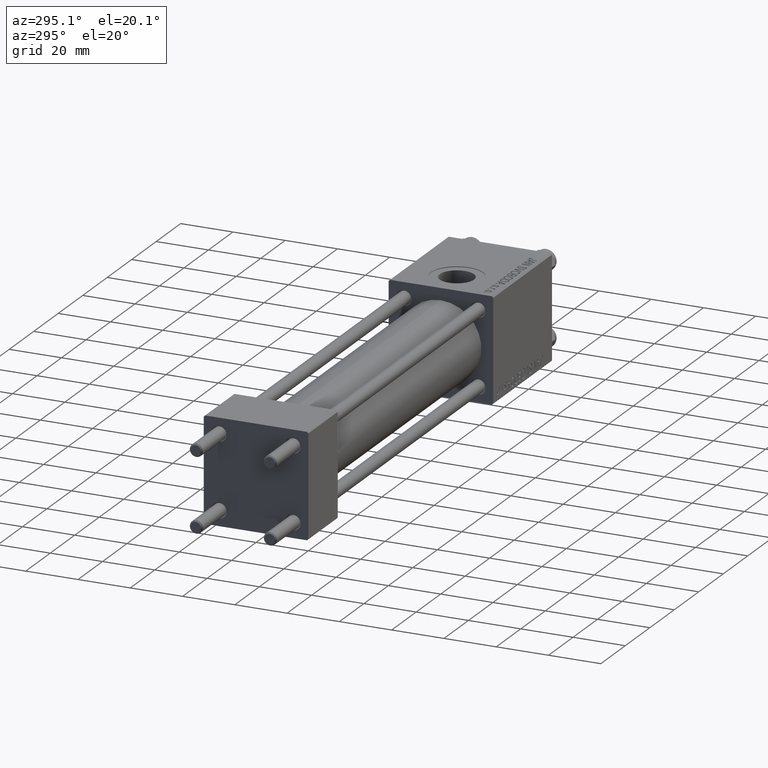
[diagram: clean part render]
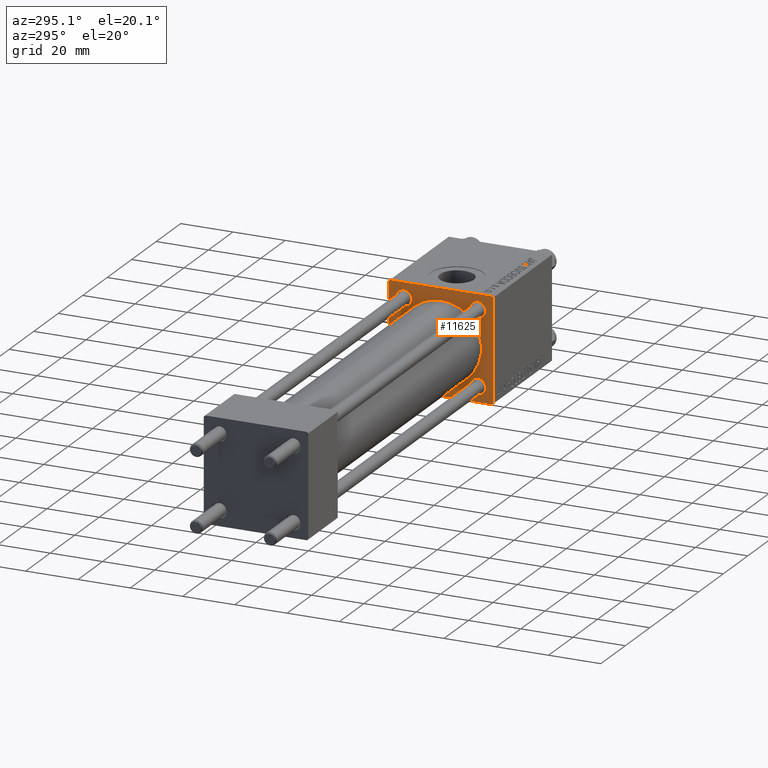
[diagram: same view with one face highlighted and labeled with its STEP entity id]
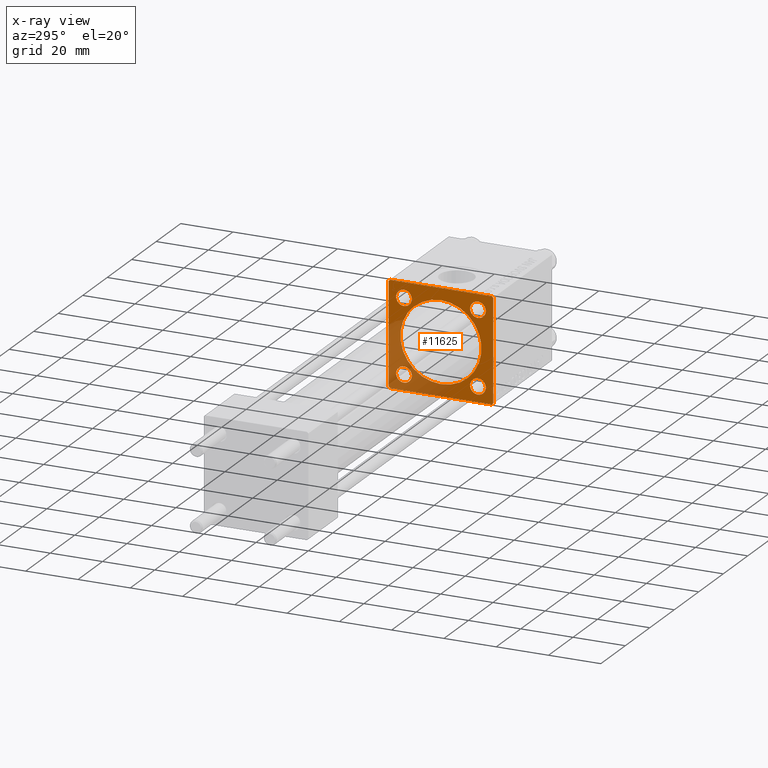
[diagram: x-ray of the same camera — body ghosted, the highlighted face saturated]
A machine part, auxiliary view. The second image highlights one B-rep face of the part: STEP entity #11625.
The next image is the same camera in x-ray: the body ghosted, the highlighted face saturated — about 30% of this face is hidden behind the body in this view.
In plain terms, the highlighted planar face has unit normal (-1, 0, 0).
Its self-contained STEP definition (entity closure, byte-faithful):
#607 = EDGE_LOOP ( 'NONE', ( #49675, #18979 ) ) ;
#623 = CARTESIAN_POINT ( 'NONE',  ( 151.0000000000000000, 14.15000000000000036, -17.14999999999997726 ) ) ;
#781 = EDGE_CURVE ( 'NONE', #42589, #5243, #16953, .T. ) ;
#1234 = LINE ( 'NONE', #16750, #15856 ) ;
#1569 = EDGE_CURVE ( 'NONE', #26627, #31905, #3195, .T. ) ;
#1601 = LINE ( 'NONE', #28076, #32705 ) ;
#1691 = CARTESIAN_POINT ( 'NONE',  ( 151.0000000000000000, -20.00000000000000000, -19.49999999999999645 ) ) ;
#2320 = CARTESIAN_POINT ( 'NONE',  ( 151.0000000000000000, 19.99999999999999645, 20.00000000000000000 ) ) ;
#2778 = CIRCLE ( 'NONE', #28775, 2.999999999999973355 ) ;
#2884 = EDGE_CURVE ( 'NONE', #11523, #6914, #20166, .T. ) ;
#2977 = DIRECTION ( 'NONE',  ( 0.000000000000000000, 0.000000000000000000, -1.000000000000000000 ) ) ;
#3123 = DIRECTION ( 'NONE',  ( 1.000000000000000000, 0.000000000000000000, 0.000000000000000000 ) ) ;
#3195 = LINE ( 'NONE', #18715, #8950 ) ;
#3377 = CARTESIAN_POINT ( 'NONE',  ( 151.0000000000000000, -14.15000000000000036, 14.15000000000000036 ) ) ;
#3881 = DIRECTION ( 'NONE',  ( 0.000000000000000000, 0.000000000000000000, -1.000000000000000000 ) ) ;
#3986 = EDGE_CURVE ( 'NONE', #23971, #37419, #45718, .T. ) ;
#4260 = VERTEX_POINT ( 'NONE', #11413 ) ;
#4492 = AXIS2_PLACEMENT_3D ( 'NONE', #47940, #5382, #36186 ) ;
#4637 = DIRECTION ( 'NONE',  ( 1.000000000000000000, 0.000000000000000000, 0.000000000000000000 ) ) ;
#4672 = LINE ( 'NONE', #8730, #48659 ) ;
#4904 = CARTESIAN_POINT ( 'NONE',  ( 151.0000000000000000, 19.75000000000001066, 19.75000000000001066 ) ) ;
#4906 = EDGE_CURVE ( 'NONE', #5243, #42589, #48211, .T. ) ;
#5225 = EDGE_CURVE ( 'NONE', #32255, #26627, #1601, .T. ) ;
#5231 = VERTEX_POINT ( 'NONE', #13283 ) ;
#5243 = VERTEX_POINT ( 'NONE', #41812 ) ;
#5382 = DIRECTION ( 'NONE',  ( -1.000000000000000000, 0.000000000000000000, -0.000000000000000000 ) ) ;
#6914 = VERTEX_POINT ( 'NONE', #48796 ) ;
#7300 = DIRECTION ( 'NONE',  ( 1.000000000000000000, 0.000000000000000000, 0.000000000000000000 ) ) ;
#7403 = VERTEX_POINT ( 'NONE', #42087 ) ;
#8060 = EDGE_CURVE ( 'NONE', #37419, #23971, #2778, .T. ) ;
#8254 = CARTESIAN_POINT ( 'NONE',  ( 151.0000000000000000, 19.99999999999999645, -19.50000000000000000 ) ) ;
#8444 = CARTESIAN_POINT ( 'NONE',  ( 151.0000000000000000, 0.000000000000000000, 0.000000000000000000 ) ) ;
#8730 = CARTESIAN_POINT ( 'NONE',  ( 151.0000000000000000, 19.99999999999999645, 20.00000000000000000 ) ) ;
#8765 = ORIENTED_EDGE ( 'NONE', *, *, #40793, .T. ) ;
#8792 = CARTESIAN_POINT ( 'NONE',  ( 151.0000000000000000, 14.15000000000000036, -14.15000000000000036 ) ) ;
#8818 = DIRECTION ( 'NONE',  ( 0.000000000000000000, 0.000000000000000000, 1.000000000000000000 ) ) ;
#8950 = VECTOR ( 'NONE', #49812, 1000.000000000000114 ) ;
#9452 = DIRECTION ( 'NONE',  ( 0.000000000000000000, 0.000000000000000000, 1.000000000000000000 ) ) ;
#10465 = CARTESIAN_POINT ( 'NONE',  ( 151.0000000000000000, -14.15000000000000036, 17.14999999999997726 ) ) ;
#11413 = CARTESIAN_POINT ( 'NONE',  ( 151.0000000000000000, 0.000000000000000000, 15.50000000000000000 ) ) ;
#11449 = EDGE_CURVE ( 'NONE', #20107, #7403, #28851, .T. ) ;
#11456 = ORIENTED_EDGE ( 'NONE', *, *, #4906, .T. ) ;
#11523 = VERTEX_POINT ( 'NONE', #49228 ) ;
#11625 = ADVANCED_FACE ( 'NONE', ( #24231, #23726, #35689, #47432, #48185, #47191 ), #17077, .T. ) ;
#12371 = CARTESIAN_POINT ( 'NONE',  ( 151.0000000000000000, 14.15000000000000036, 14.15000000000000036 ) ) ;
#12424 = CARTESIAN_POINT ( 'NONE',  ( 151.0000000000000000, 14.15000000000000036, -11.15000000000002522 ) ) ;
#12455 = CARTESIAN_POINT ( 'NONE',  ( 151.0000000000000000, -14.15000000000000036, -11.15000000000002522 ) ) ;
#12799 = ORIENTED_EDGE ( 'NONE', *, *, #8060, .T. ) ;
#13283 = CARTESIAN_POINT ( 'NONE',  ( 151.0000000000000000, -19.50000000000003197, 19.99999999999999645 ) ) ;
#13762 = CARTESIAN_POINT ( 'NONE',  ( 151.0000000000000000, 14.15000000000000036, -14.15000000000000036 ) ) ;
#15557 = VECTOR ( 'NONE', #28051, 1000.000000000000114 ) ;
#15856 = VECTOR ( 'NONE', #24902, 1000.000000000000114 ) ;
#16486 = ORIENTED_EDGE ( 'NONE', *, *, #38441, .T. ) ;
#16750 = CARTESIAN_POINT ( 'NONE',  ( 151.0000000000000000, 19.74999999999999645, -19.74999999999999645 ) ) ;
#16953 = CIRCLE ( 'NONE', #25103, 2.999999999999976463 ) ;
#17077 = PLANE ( 'NONE',  #4492 ) ;
#17113 = DIRECTION ( 'NONE',  ( 0.000000000000000000, -1.000000000000000000, 0.000000000000000000 ) ) ;
#17230 = AXIS2_PLACEMENT_3D ( 'NONE', #39241, #23439, #23180 ) ;
#18293 = EDGE_LOOP ( 'NONE', ( #8765, #19159 ) ) ;
#18582 = CARTESIAN_POINT ( 'NONE',  ( 151.0000000000000000, 1.898202538678397557E-15, -15.50000000000000000 ) ) ;
#18715 = CARTESIAN_POINT ( 'NONE',  ( 151.0000000000000000, -19.74999999999999645, -19.74999999999999645 ) ) ;
#18979 = ORIENTED_EDGE ( 'NONE', *, *, #21547, .T. ) ;
#19159 = ORIENTED_EDGE ( 'NONE', *, *, #37506, .T. ) ;
#19463 = ORIENTED_EDGE ( 'NONE', *, *, #5225, .T. ) ;
#19555 = ORIENTED_EDGE ( 'NONE', *, *, #11449, .T. ) ;
#20107 = VERTEX_POINT ( 'NONE', #26590 ) ;
#20166 = LINE ( 'NONE', #4904, #15557 ) ;
#21547 = EDGE_CURVE ( 'NONE', #27725, #49541, #43766, .T. ) ;
#21958 = DIRECTION ( 'NONE',  ( 0.000000000000000000, 0.000000000000000000, 1.000000000000000000 ) ) ;
#22823 = DIRECTION ( 'NONE',  ( 0.000000000000000000, 0.000000000000000000, 1.000000000000000000 ) ) ;
#23180 = DIRECTION ( 'NONE',  ( 0.000000000000000000, 0.000000000000000000, 1.000000000000000000 ) ) ;
#23258 = EDGE_CURVE ( 'NONE', #49541, #27725, #43794, .T. ) ;
#23439 = DIRECTION ( 'NONE',  ( 1.000000000000000000, 0.000000000000000000, 0.000000000000000000 ) ) ;
#23726 = FACE_BOUND ( 'NONE', #44873, .T. ) ;
#23971 = VERTEX_POINT ( 'NONE', #38099 ) ;
#24231 = FACE_BOUND ( 'NONE', #39806, .T. ) ;
#24727 = DIRECTION ( 'NONE',  ( 0.000000000000000000, 0.000000000000000000, 1.000000000000000000 ) ) ;
#24902 = DIRECTION ( 'NONE',  ( -0.000000000000000000, -0.7071067811865474617, -0.7071067811865474617 ) ) ;
#25103 = AXIS2_PLACEMENT_3D ( 'NONE', #47245, #43412, #36242 ) ;
#25320 = DIRECTION ( 'NONE',  ( 1.000000000000000000, 0.000000000000000000, 0.000000000000000000 ) ) ;
#25687 = DIRECTION ( 'NONE',  ( -0.000000000000000000, 0.7071067811865474617, 0.7071067811865474617 ) ) ;
#25913 = EDGE_CURVE ( 'NONE', #11523, #5231, #4672, .T. ) ;
#26590 = CARTESIAN_POINT ( 'NONE',  ( 151.0000000000000000, 14.15000000000000036, 17.14999999999997726 ) ) ;
#26627 = VERTEX_POINT ( 'NONE', #31735 ) ;
#27027 = VECTOR ( 'NONE', #49951, 1000.000000000000000 ) ;
#27345 = ORIENTED_EDGE ( 'NONE', *, *, #31674, .T. ) ;
#27725 = VERTEX_POINT ( 'NONE', #623 ) ;
#28051 = DIRECTION ( 'NONE',  ( 0.000000000000000000, 0.7071067811865474617, -0.7071067811865474617 ) ) ;
#28076 = CARTESIAN_POINT ( 'NONE',  ( 151.0000000000000000, 19.99999999999999645, -20.00000000000000000 ) ) ;
#28314 = LINE ( 'NONE', #40043, #34153 ) ;
#28775 = AXIS2_PLACEMENT_3D ( 'NONE', #3377, #3123, #21958 ) ;
#28851 = CIRCLE ( 'NONE', #37001, 2.999999999999973355 ) ;
#29024 = DIRECTION ( 'NONE',  ( 0.000000000000000000, 8.673617379884036705E-17, -1.000000000000000000 ) ) ;
#29138 = AXIS2_PLACEMENT_3D ( 'NONE', #8792, #25320, #43957 ) ;
#29842 = ORIENTED_EDGE ( 'NONE', *, *, #2884, .T. ) ;
#30583 = CIRCLE ( 'NONE', #41176, 15.50000000000000000 ) ;
#30961 = DIRECTION ( 'NONE',  ( 1.000000000000000000, 0.000000000000000000, 0.000000000000000000 ) ) ;
#31373 = CARTESIAN_POINT ( 'NONE',  ( 151.0000000000000000, 19.49999999999999645, -20.00000000000000000 ) ) ;
#31643 = VERTEX_POINT ( 'NONE', #43137 ) ;
#31674 = EDGE_CURVE ( 'NONE', #31643, #5231, #28314, .T. ) ;
#31735 = CARTESIAN_POINT ( 'NONE',  ( 151.0000000000000000, -19.49999999999999645, -20.00000000000000000 ) ) ;
#31905 = VERTEX_POINT ( 'NONE', #1691 ) ;
#31906 = AXIS2_PLACEMENT_3D ( 'NONE', #42206, #7300, #22823 ) ;
#32255 = VERTEX_POINT ( 'NONE', #31373 ) ;
#32545 = EDGE_CURVE ( 'NONE', #6914, #39901, #34379, .T. ) ;
#32705 = VECTOR ( 'NONE', #17113, 1000.000000000000000 ) ;
#32852 = CARTESIAN_POINT ( 'NONE',  ( 151.0000000000000000, 14.15000000000000036, 14.15000000000000036 ) ) ;
#33336 = LINE ( 'NONE', #36679, #49333 ) ;
#33462 = ORIENTED_EDGE ( 'NONE', *, *, #40307, .T. ) ;
#34153 = VECTOR ( 'NONE', #25687, 1000.000000000000114 ) ;
#34379 = LINE ( 'NONE', #2320, #27027 ) ;
#34972 = DIRECTION ( 'NONE',  ( 0.000000000000000000, -1.000000000000000000, -8.673617379884035472E-17 ) ) ;
#35063 = ORIENTED_EDGE ( 'NONE', *, *, #25913, .F. ) ;
#35621 = AXIS2_PLACEMENT_3D ( 'NONE', #13762, #44369, #9452 ) ;
#35689 = FACE_BOUND ( 'NONE', #607, .T. ) ;
#35806 = ORIENTED_EDGE ( 'NONE', *, *, #45637, .F. ) ;
#36186 = DIRECTION ( 'NONE',  ( -0.000000000000000000, 0.000000000000000000, 1.000000000000000000 ) ) ;
#36225 = AXIS2_PLACEMENT_3D ( 'NONE', #32852, #44609, #24727 ) ;
#36242 = DIRECTION ( 'NONE',  ( 0.000000000000000000, 0.000000000000000000, 1.000000000000000000 ) ) ;
#36679 = CARTESIAN_POINT ( 'NONE',  ( 151.0000000000000000, -20.00000000000000355, 19.99999999999999645 ) ) ;
#36706 = EDGE_LOOP ( 'NONE', ( #19463, #43983, #35806, #27345, #35063, #29842, #38127, #16486 ) ) ;
#36977 = AXIS2_PLACEMENT_3D ( 'NONE', #46530, #30961, #2977 ) ;
#37001 = AXIS2_PLACEMENT_3D ( 'NONE', #12371, #43733, #8818 ) ;
#37419 = VERTEX_POINT ( 'NONE', #10465 ) ;
#37506 = EDGE_CURVE ( 'NONE', #46882, #4260, #50001, .T. ) ;
#38099 = CARTESIAN_POINT ( 'NONE',  ( 151.0000000000000000, -14.15000000000000036, 11.15000000000002700 ) ) ;
#38127 = ORIENTED_EDGE ( 'NONE', *, *, #32545, .T. ) ;
#38441 = EDGE_CURVE ( 'NONE', #39901, #32255, #1234, .T. ) ;
#39241 = CARTESIAN_POINT ( 'NONE',  ( 151.0000000000000000, -14.15000000000000036, 14.15000000000000036 ) ) ;
#39806 = EDGE_LOOP ( 'NONE', ( #12799, #48454 ) ) ;
#39901 = VERTEX_POINT ( 'NONE', #8254 ) ;
#40043 = CARTESIAN_POINT ( 'NONE',  ( 151.0000000000000000, -19.75000000000001421, 19.75000000000001421 ) ) ;
#40307 = EDGE_CURVE ( 'NONE', #7403, #20107, #48466, .T. ) ;
#40793 = EDGE_CURVE ( 'NONE', #4260, #46882, #30583, .T. ) ;
#41176 = AXIS2_PLACEMENT_3D ( 'NONE', #8444, #4637, #3881 ) ;
#41812 = CARTESIAN_POINT ( 'NONE',  ( 151.0000000000000000, -14.15000000000000036, -17.14999999999997726 ) ) ;
#42087 = CARTESIAN_POINT ( 'NONE',  ( 151.0000000000000000, 14.15000000000000036, 11.15000000000002700 ) ) ;
#42206 = CARTESIAN_POINT ( 'NONE',  ( 151.0000000000000000, -14.15000000000000036, -14.15000000000000036 ) ) ;
#42589 = VERTEX_POINT ( 'NONE', #12455 ) ;
#43137 = CARTESIAN_POINT ( 'NONE',  ( 151.0000000000000000, -20.00000000000000355, 19.50000000000002487 ) ) ;
#43412 = DIRECTION ( 'NONE',  ( 1.000000000000000000, 0.000000000000000000, 0.000000000000000000 ) ) ;
#43733 = DIRECTION ( 'NONE',  ( 1.000000000000000000, 0.000000000000000000, 0.000000000000000000 ) ) ;
#43766 = CIRCLE ( 'NONE', #35621, 2.999999999999976463 ) ;
#43794 = CIRCLE ( 'NONE', #29138, 2.999999999999976463 ) ;
#43800 = EDGE_LOOP ( 'NONE', ( #48448, #11456 ) ) ;
#43957 = DIRECTION ( 'NONE',  ( 0.000000000000000000, 0.000000000000000000, 1.000000000000000000 ) ) ;
#43983 = ORIENTED_EDGE ( 'NONE', *, *, #1569, .T. ) ;
#44369 = DIRECTION ( 'NONE',  ( 1.000000000000000000, 0.000000000000000000, 0.000000000000000000 ) ) ;
#44609 = DIRECTION ( 'NONE',  ( 1.000000000000000000, 0.000000000000000000, 0.000000000000000000 ) ) ;
#44873 = EDGE_LOOP ( 'NONE', ( #19555, #33462 ) ) ;
#45637 = EDGE_CURVE ( 'NONE', #31643, #31905, #33336, .T. ) ;
#45718 = CIRCLE ( 'NONE', #17230, 2.999999999999973355 ) ;
#46530 = CARTESIAN_POINT ( 'NONE',  ( 151.0000000000000000, 0.000000000000000000, 0.000000000000000000 ) ) ;
#46882 = VERTEX_POINT ( 'NONE', #18582 ) ;
#47191 = FACE_OUTER_BOUND ( 'NONE', #36706, .T. ) ;
#47245 = CARTESIAN_POINT ( 'NONE',  ( 151.0000000000000000, -14.15000000000000036, -14.15000000000000036 ) ) ;
#47432 = FACE_BOUND ( 'NONE', #43800, .T. ) ;
#47940 = CARTESIAN_POINT ( 'NONE',  ( 151.0000000000000000, 0.000000000000000000, 0.000000000000000000 ) ) ;
#48185 = FACE_BOUND ( 'NONE', #18293, .T. ) ;
#48211 = CIRCLE ( 'NONE', #31906, 2.999999999999976463 ) ;
#48448 = ORIENTED_EDGE ( 'NONE', *, *, #781, .T. ) ;
#48454 = ORIENTED_EDGE ( 'NONE', *, *, #3986, .T. ) ;
#48466 = CIRCLE ( 'NONE', #36225, 2.999999999999973355 ) ;
#48659 = VECTOR ( 'NONE', #34972, 1000.000000000000000 ) ;
#48796 = CARTESIAN_POINT ( 'NONE',  ( 151.0000000000000000, 19.99999999999999645, 19.50000000000002842 ) ) ;
#49228 = CARTESIAN_POINT ( 'NONE',  ( 151.0000000000000000, 19.50000000000002487, 20.00000000000000000 ) ) ;
#49333 = VECTOR ( 'NONE', #29024, 1000.000000000000000 ) ;
#49541 = VERTEX_POINT ( 'NONE', #12424 ) ;
#49675 = ORIENTED_EDGE ( 'NONE', *, *, #23258, .T. ) ;
#49812 = DIRECTION ( 'NONE',  ( 0.000000000000000000, -0.7071067811865474617, 0.7071067811865474617 ) ) ;
#49951 = DIRECTION ( 'NONE',  ( 0.000000000000000000, 0.000000000000000000, -1.000000000000000000 ) ) ;
#50001 = CIRCLE ( 'NONE', #36977, 15.50000000000000000 ) ;